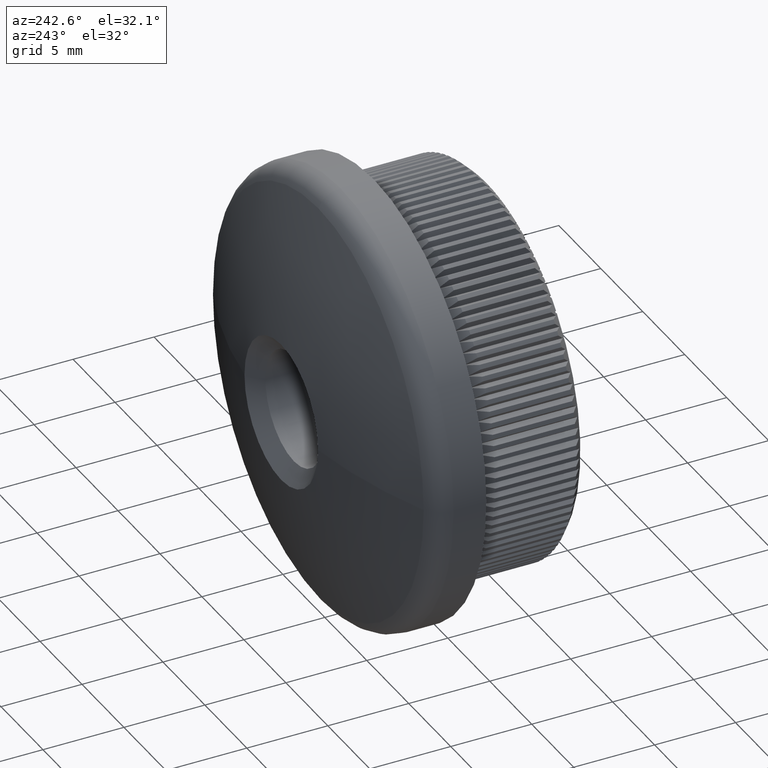
[diagram: clean part render]
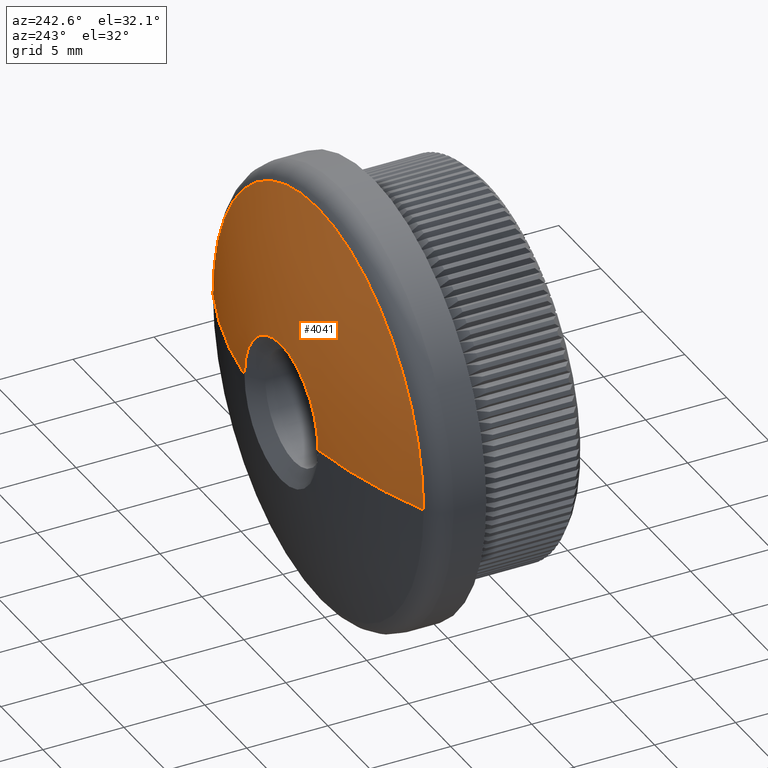
[diagram: same view with one face highlighted and labeled with its STEP entity id]
A machine part, auxiliary view. The second image highlights one B-rep face of the part: STEP entity #4041.
In plain terms, the highlighted spherical surface has radius 31.6504 mm.
Its self-contained STEP definition (entity closure, byte-faithful):
#643 = CARTESIAN_POINT ( 'NONE',  ( 0.0000000000000000000, -18.65041666666673900, 0.0000000000000000000 ) ) ;
#665 = AXIS2_PLACEMENT_3D ( 'NONE', #16635, #8587, #762 ) ;
#762 = DIRECTION ( 'NONE',  ( 0.0000000000000000000, 0.0000000000000000000, -1.000000000000000000 ) ) ;
#1255 = CIRCLE ( 'NONE', #10848, 12.54451914705435000 ) ;
#2507 = VERTEX_POINT ( 'NONE', #16747 ) ;
#2694 = CARTESIAN_POINT ( 'NONE',  ( 0.0000000000000000000, -18.65041666666673900, 0.0000000000000000000 ) ) ;
#2867 = AXIS2_PLACEMENT_3D ( 'NONE', #14762, #3619, #11611 ) ;
#3054 = AXIS2_PLACEMENT_3D ( 'NONE', #19520, #6696, #8167 ) ;
#3460 = EDGE_LOOP ( 'NONE', ( #13196, #10022, #3979, #13541, #8170, #12524 ) ) ;
#3619 = DIRECTION ( 'NONE',  ( 0.0000000000000000000, 1.000000000000000000, 0.0000000000000000000 ) ) ;
#3763 = DIRECTION ( 'NONE',  ( -1.000000000000000000, 0.0000000000000000000, 0.0000000000000000000 ) ) ;
#3828 = DIRECTION ( 'NONE',  ( 0.0000000000000000000, 0.0000000000000000000, -1.000000000000000000 ) ) ;
#3915 = EDGE_CURVE ( 'NONE', #11910, #16321, #10147, .T. ) ;
#3979 = ORIENTED_EDGE ( 'NONE', *, *, #13011, .T. ) ;
#3987 = CARTESIAN_POINT ( 'NONE',  ( 12.54451914705435600, 10.40786811655475900, 0.0000000000000000000 ) ) ;
#4041 = ADVANCED_FACE ( 'NONE', ( #7612 ), #10385, .T. ) ;
#5003 = EDGE_CURVE ( 'NONE', #15745, #14498, #17372, .T. ) ;
#5106 = CARTESIAN_POINT ( 'NONE',  ( 0.0000000000000000000, 10.40786811655475900, 0.0000000000000000000 ) ) ;
#5952 = DIRECTION ( 'NONE',  ( 0.0000000000000000000, 0.0000000000000000000, 1.000000000000000000 ) ) ;
#6142 = DIRECTION ( 'NONE',  ( 1.224646799147353200E-016, -0.0000000000000000000, 1.000000000000000000 ) ) ;
#6696 = DIRECTION ( 'NONE',  ( -0.0000000000000000000, -1.000000000000000000, -0.0000000000000000000 ) ) ;
#6904 = CARTESIAN_POINT ( 'NONE',  ( 4.377335247020643500, 12.69584006852903000, 0.0000000000000000000 ) ) ;
#7612 = FACE_OUTER_BOUND ( 'NONE', #3460, .T. ) ;
#7653 = CIRCLE ( 'NONE', #11415, 31.65041666666673600 ) ;
#8167 = DIRECTION ( 'NONE',  ( 0.0000000000000000000, 0.0000000000000000000, -1.000000000000000000 ) ) ;
#8170 = ORIENTED_EDGE ( 'NONE', *, *, #15271, .T. ) ;
#8266 = CARTESIAN_POINT ( 'NONE',  ( 0.0000000000000000000, 12.69584006852903000, 4.377335247020639900 ) ) ;
#8336 = EDGE_CURVE ( 'NONE', #17987, #2507, #1255, .T. ) ;
#8467 = DIRECTION ( 'NONE',  ( 0.0000000000000000000, 0.0000000000000000000, -1.000000000000000000 ) ) ;
#8587 = DIRECTION ( 'NONE',  ( -0.0000000000000000000, -1.000000000000000000, -0.0000000000000000000 ) ) ;
#9438 = DIRECTION ( 'NONE',  ( 1.000000000000000000, 0.0000000000000000000, -1.224646799147353200E-016 ) ) ;
#9603 = DIRECTION ( 'NONE',  ( 1.000000000000000000, 0.0000000000000000000, 0.0000000000000000000 ) ) ;
#9773 = AXIS2_PLACEMENT_3D ( 'NONE', #2694, #5952, #9603 ) ;
#10022 = ORIENTED_EDGE ( 'NONE', *, *, #5003, .T. ) ;
#10147 = CIRCLE ( 'NONE', #18628, 31.65041666666673600 ) ;
#10385 = SPHERICAL_SURFACE ( 'NONE', #9773, 31.65041666666673600 ) ;
#10848 = AXIS2_PLACEMENT_3D ( 'NONE', #5106, #16320, #8467 ) ;
#11415 = AXIS2_PLACEMENT_3D ( 'NONE', #19167, #6142, #9438 ) ;
#11611 = DIRECTION ( 'NONE',  ( 0.0000000000000000000, 0.0000000000000000000, -1.000000000000000000 ) ) ;
#11910 = VERTEX_POINT ( 'NONE', #6904 ) ;
#12524 = ORIENTED_EDGE ( 'NONE', *, *, #3915, .F. ) ;
#13011 = EDGE_CURVE ( 'NONE', #14498, #17987, #7653, .T. ) ;
#13196 = ORIENTED_EDGE ( 'NONE', *, *, #19812, .T. ) ;
#13541 = ORIENTED_EDGE ( 'NONE', *, *, #8336, .T. ) ;
#14498 = VERTEX_POINT ( 'NONE', #16690 ) ;
#14762 = CARTESIAN_POINT ( 'NONE',  ( 0.0000000000000000000, 10.40786811655475900, 0.0000000000000000000 ) ) ;
#15271 = EDGE_CURVE ( 'NONE', #2507, #16321, #18888, .T. ) ;
#15745 = VERTEX_POINT ( 'NONE', #8266 ) ;
#16320 = DIRECTION ( 'NONE',  ( 0.0000000000000000000, 1.000000000000000000, 0.0000000000000000000 ) ) ;
#16321 = VERTEX_POINT ( 'NONE', #3987 ) ;
#16635 = CARTESIAN_POINT ( 'NONE',  ( 0.0000000000000000000, 12.69584006852903000, 0.0000000000000000000 ) ) ;
#16690 = CARTESIAN_POINT ( 'NONE',  ( -4.377335247020643500, 12.69584006852903000, 1.036164740967075400E-015 ) ) ;
#16747 = CARTESIAN_POINT ( 'NONE',  ( 1.591705233440734600E-015, 10.40786811655475900, 12.54451914705435000 ) ) ;
#17279 = CIRCLE ( 'NONE', #665, 4.377335247020643500 ) ;
#17372 = CIRCLE ( 'NONE', #3054, 4.377335247020643500 ) ;
#17987 = VERTEX_POINT ( 'NONE', #18185 ) ;
#18185 = CARTESIAN_POINT ( 'NONE',  ( -12.54451914705435600, 10.40786811655475900, 1.536260522028280300E-015 ) ) ;
#18628 = AXIS2_PLACEMENT_3D ( 'NONE', #643, #3828, #3763 ) ;
#18888 = CIRCLE ( 'NONE', #2867, 12.54451914705435000 ) ;
#19167 = CARTESIAN_POINT ( 'NONE',  ( 0.0000000000000000000, -18.65041666666673900, 0.0000000000000000000 ) ) ;
#19520 = CARTESIAN_POINT ( 'NONE',  ( 0.0000000000000000000, 12.69584006852903000, 0.0000000000000000000 ) ) ;
#19812 = EDGE_CURVE ( 'NONE', #11910, #15745, #17279, .T. ) ;